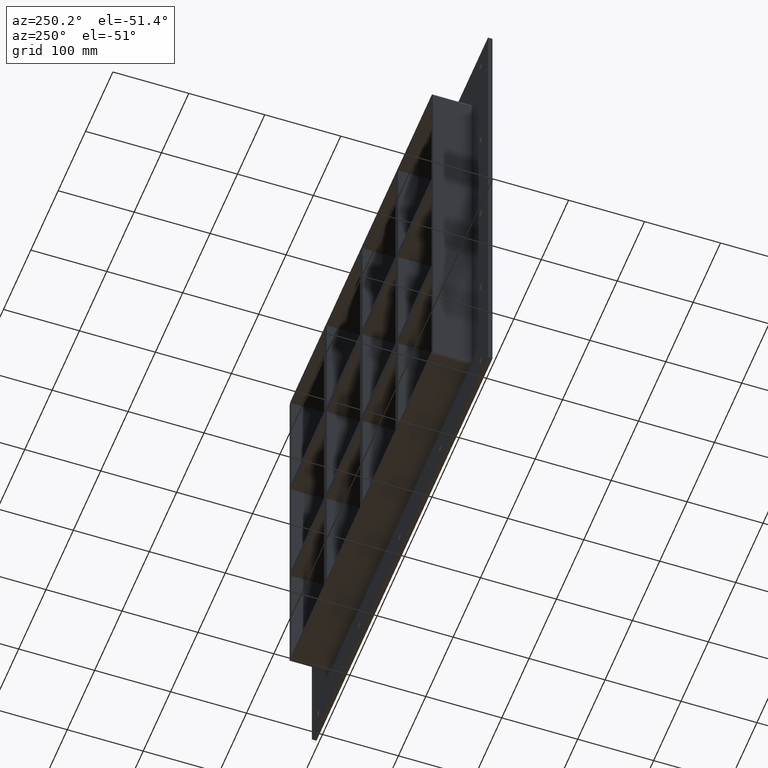
[diagram: clean part render]
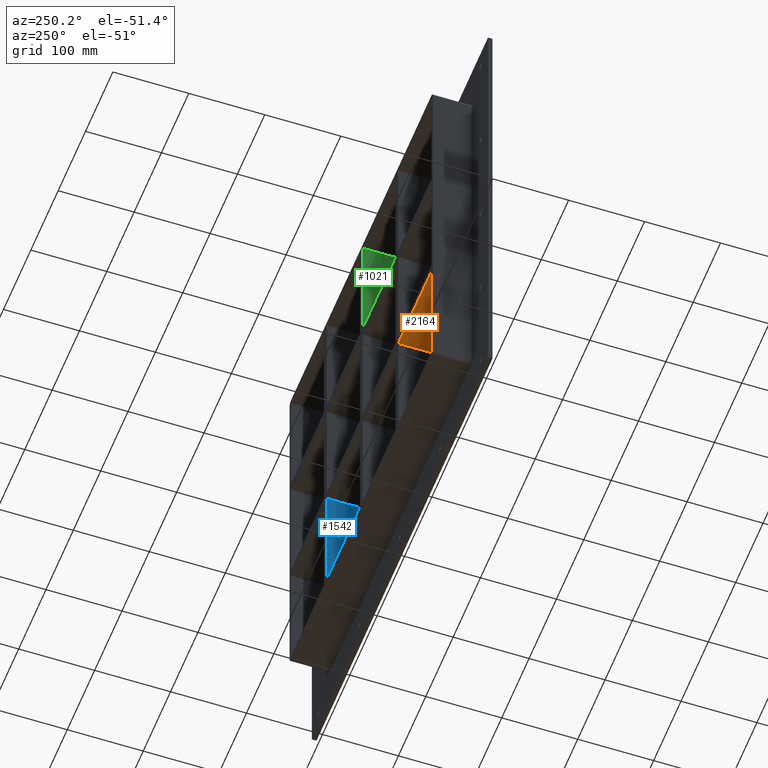
[diagram: same view with three faces highlighted in distinct colors, each labeled with its STEP entity id]
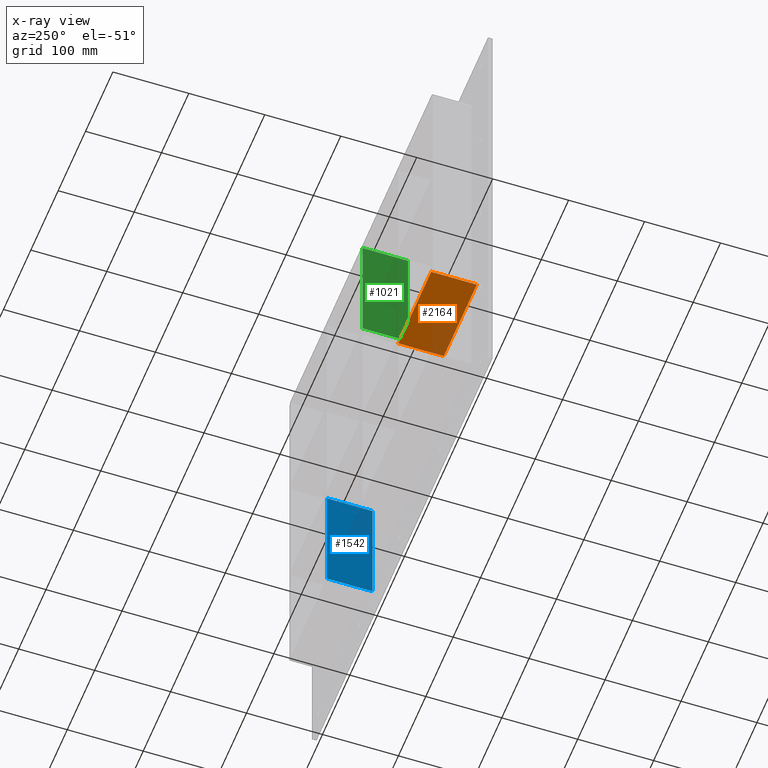
[diagram: x-ray of the same camera — body ghosted, the three highlighted faces saturated]
A machine part, auxiliary view with three faces highlighted in distinct colors.
The next image is the same camera in x-ray (body ghosted, the three faces saturated) — at least one of them is partly hidden behind the body in this view.
Their STEP definitions:

[orange] entity #2164 — the highlighted planar face has unit normal (0, 0, -1).
#1340=CARTESIAN_POINT('',(-256.00000000000045,57.0,-91.750000000010346));
#1341=VERTEX_POINT('',#1340);
#1358=CARTESIAN_POINT('',(-135.5000000000021,57.0,-91.750000000010317));
#1359=VERTEX_POINT('',#1358);
#1366=CARTESIAN_POINT('',(-135.5000000000021,57.0,-91.750000000010317));
#1367=DIRECTION('',(-1.0,0.0,0.0));
#1368=VECTOR('',#1367,120.49999999999835);
#1369=LINE('',#1366,#1368);
#1370=EDGE_CURVE('',#1359,#1341,#1369,.T.);
#1997=CARTESIAN_POINT('',(-135.5000000000021,-3.0,-91.750000000010317));
#1998=VERTEX_POINT('',#1997);
#1999=CARTESIAN_POINT('',(-256.00000000000045,-3.0,-91.750000000010346));
#2000=VERTEX_POINT('',#1999);
#2001=CARTESIAN_POINT('',(-135.5000000000021,-3.0,-91.750000000010317));
#2002=DIRECTION('',(-1.0,0.0,0.0));
#2003=VECTOR('',#2002,120.49999999999835);
#2004=LINE('',#2001,#2003);
#2005=EDGE_CURVE('',#1998,#2000,#2004,.T.);
#2143=CARTESIAN_POINT('',(256.00000000000364,-3.0,-91.750000000010189));
#2144=DIRECTION('',(0.0,0.0,-1.0));
#2145=DIRECTION('',(-1.0,0.0,0.0));
#2146=AXIS2_PLACEMENT_3D('',#2143,#2144,#2145);
#2147=PLANE('',#2146);
#2148=CARTESIAN_POINT('',(-135.5000000000021,-3.0,-91.750000000010289));
#2149=DIRECTION('',(0.0,1.0,0.0));
#2150=VECTOR('',#2149,60.0);
#2151=LINE('',#2148,#2150);
#2152=EDGE_CURVE('',#1998,#1359,#2151,.T.);
#2153=ORIENTED_EDGE('',*,*,#2152,.F.);
#2154=ORIENTED_EDGE('',*,*,#2005,.T.);
#2155=CARTESIAN_POINT('',(-256.0,57.000000000000007,-91.750000000010331));
#2156=DIRECTION('',(0.0,-1.0,0.0));
#2157=VECTOR('',#2156,60.000000000000007);
#2158=LINE('',#2155,#2157);
#2159=EDGE_CURVE('',#1341,#2000,#2158,.T.);
#2160=ORIENTED_EDGE('',*,*,#2159,.F.);
#2161=ORIENTED_EDGE('',*,*,#1370,.F.);
#2162=EDGE_LOOP('',(#2153,#2154,#2160,#2161));
#2163=FACE_OUTER_BOUND('',#2162,.T.);
#2164=ADVANCED_FACE('',(#2163),#2147,.T.);

[blue] entity #1542 — the highlighted planar face has unit normal (-1, 0, 0).
#1408=CARTESIAN_POINT('',(125.49999999999791,57.0,-251.25000000000003));
#1409=VERTEX_POINT('',#1408);
#1410=CARTESIAN_POINT('',(125.4999999999979,57.0,-91.750000000010218));
#1411=VERTEX_POINT('',#1410);
#1412=CARTESIAN_POINT('',(125.49999999999791,57.0,-251.25000000000003));
#1413=DIRECTION('',(0.0,0.0,1.0));
#1414=VECTOR('',#1413,159.49999999998983);
#1415=LINE('',#1412,#1414);
#1416=EDGE_CURVE('',#1409,#1411,#1415,.T.);
#1512=CARTESIAN_POINT('',(125.49999999999791,-3.0,-251.25000000000003));
#1513=DIRECTION('',(-1.0,0.0,0.0));
#1514=DIRECTION('',(0.0,0.0,1.0));
#1515=AXIS2_PLACEMENT_3D('',#1512,#1513,#1514);
#1516=PLANE('',#1515);
#1517=CARTESIAN_POINT('',(125.4999999999979,-3.0,-91.750000000010218));
#1518=VERTEX_POINT('',#1517);
#1519=CARTESIAN_POINT('',(125.49999999999791,57.0,-91.750000000010232));
#1520=DIRECTION('',(0.0,-1.0,0.0));
#1521=VECTOR('',#1520,60.0);
#1522=LINE('',#1519,#1521);
#1523=EDGE_CURVE('',#1411,#1518,#1522,.T.);
#1524=ORIENTED_EDGE('',*,*,#1523,.F.);
#1525=ORIENTED_EDGE('',*,*,#1416,.F.);
#1526=CARTESIAN_POINT('',(125.49999999999791,-3.0,-251.25000000000003));
#1527=VERTEX_POINT('',#1526);
#1528=CARTESIAN_POINT('',(125.49999999999791,-3.0,-251.25000000000003));
#1529=DIRECTION('',(0.0,1.0,0.0));
#1530=VECTOR('',#1529,60.000000000000007);
#1531=LINE('',#1528,#1530);
#1532=EDGE_CURVE('',#1527,#1409,#1531,.T.);
#1533=ORIENTED_EDGE('',*,*,#1532,.F.);
#1534=CARTESIAN_POINT('',(125.49999999999791,-3.0,-251.25000000000003));
#1535=DIRECTION('',(0.0,0.0,1.0));
#1536=VECTOR('',#1535,159.49999999998983);
#1537=LINE('',#1534,#1536);
#1538=EDGE_CURVE('',#1527,#1518,#1537,.T.);
#1539=ORIENTED_EDGE('',*,*,#1538,.T.);
#1540=EDGE_LOOP('',(#1524,#1525,#1533,#1539));
#1541=FACE_OUTER_BOUND('',#1540,.T.);
#1542=ADVANCED_FACE('',(#1541),#1516,.T.);

[green] entity #1021 — the highlighted planar face has unit normal (-1, 0, 0).
#761=CARTESIAN_POINT('',(-5.000000000002132,57.0,91.750000000000085));
#762=VERTEX_POINT('',#761);
#763=CARTESIAN_POINT('',(-5.000000000002132,-3.0,91.750000000000085));
#764=VERTEX_POINT('',#763);
#765=CARTESIAN_POINT('',(-5.000000000002114,57.0,91.750000000000085));
#766=DIRECTION('',(0.0,-1.0,0.0));
#767=VECTOR('',#766,60.0);
#768=LINE('',#765,#767);
#769=EDGE_CURVE('',#762,#764,#768,.T.);
#991=CARTESIAN_POINT('',(-5.000000000002096,-3.0,-251.25000000000003));
#992=DIRECTION('',(-1.0,0.0,0.0));
#993=DIRECTION('',(0.0,0.0,1.0));
#994=AXIS2_PLACEMENT_3D('',#991,#992,#993);
#995=PLANE('',#994);
#996=ORIENTED_EDGE('',*,*,#769,.T.);
#997=CARTESIAN_POINT('',(-5.000000000002132,-3.0,251.24999999999997));
#998=VERTEX_POINT('',#997);
#999=CARTESIAN_POINT('',(-5.00000000000212,-3.0,91.750000000000085));
#1000=DIRECTION('',(0.0,0.0,1.0));
#1001=VECTOR('',#1000,159.49999999999989);
#1002=LINE('',#999,#1001);
#1003=EDGE_CURVE('',#764,#998,#1002,.T.);
#1004=ORIENTED_EDGE('',*,*,#1003,.T.);
#1005=CARTESIAN_POINT('',(-5.000000000002132,57.0,251.24999999999997));
#1006=VERTEX_POINT('',#1005);
#1007=CARTESIAN_POINT('',(-5.000000000002132,57.000000000000007,251.25));
#1008=DIRECTION('',(0.0,-1.0,0.0));
#1009=VECTOR('',#1008,60.000000000000007);
#1010=LINE('',#1007,#1009);
#1011=EDGE_CURVE('',#1006,#998,#1010,.T.);
#1012=ORIENTED_EDGE('',*,*,#1011,.F.);
#1013=CARTESIAN_POINT('',(-5.00000000000212,57.0,91.750000000000085));
#1014=DIRECTION('',(0.0,0.0,1.0));
#1015=VECTOR('',#1014,159.49999999999989);
#1016=LINE('',#1013,#1015);
#1017=EDGE_CURVE('',#762,#1006,#1016,.T.);
#1018=ORIENTED_EDGE('',*,*,#1017,.F.);
#1019=EDGE_LOOP('',(#996,#1004,#1012,#1018));
#1020=FACE_OUTER_BOUND('',#1019,.T.);
#1021=ADVANCED_FACE('',(#1020),#995,.T.);